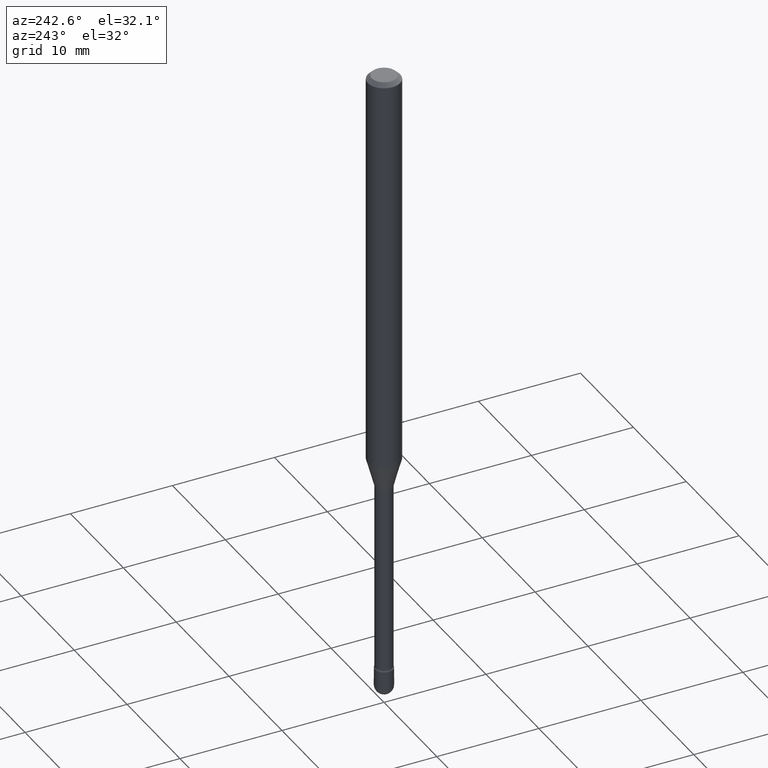
[diagram: clean part render]
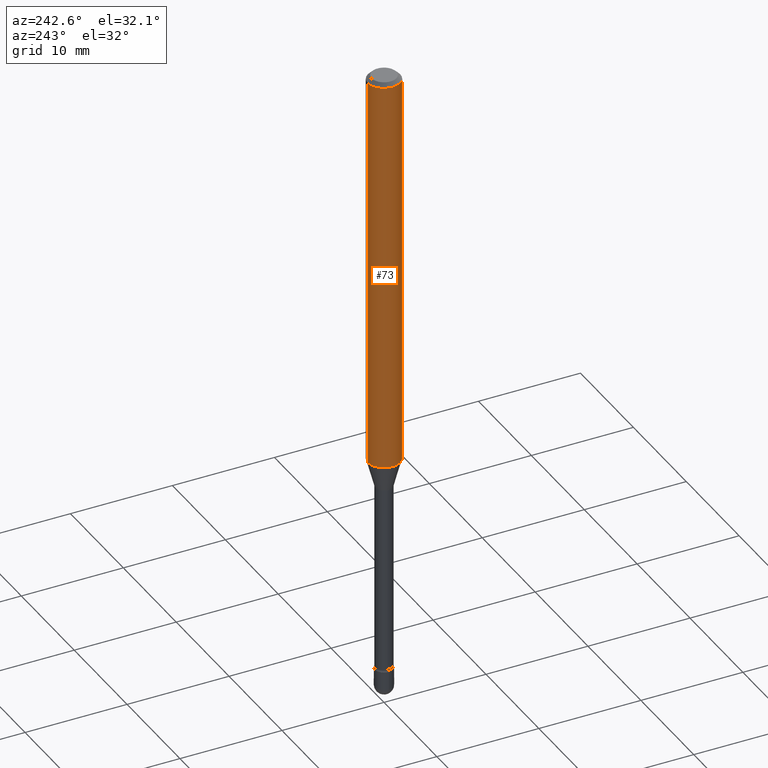
[diagram: same view with one face highlighted and labeled with its STEP entity id]
A machine part, auxiliary view. The second image highlights one B-rep face of the part: STEP entity #73.
In plain terms, the highlighted cylindrical surface (edge-blend (fillet) strip) has radius 1.5875 mm, axis along (-0, 0, 1).
Its self-contained STEP definition (entity closure, byte-faithful):
#15 = DIRECTION ( 'NONE',  ( -2.445517311797238408E-29, 3.491411876045847852E-15, 1.000000000000000000 ) ) ;
#25 = CARTESIAN_POINT ( 'NONE',  ( 4.440892098501006787E-16, 0.06249999999999995143, -0.01500000000000030129 ) ) ;
#30 = CARTESIAN_POINT ( 'NONE',  ( -4.364351673553912750E-16, -0.06250000000000005551, -0.01499999999999986587 ) ) ;
#38 = VECTOR ( 'NONE', #182, 39.37007874015748143 ) ;
#46 = DIRECTION ( 'NONE',  ( -6.982962677686265922E-15, -1.000000000000000000, 3.491411876045847458E-15 ) ) ;
#55 = ORIENTED_EDGE ( 'NONE', *, *, #244, .T. ) ;
#66 = CARTESIAN_POINT ( 'NONE',  ( 3.789405609774286933E-29, -5.410051969494155627E-15, -1.549531296095961519 ) ) ;
#73 = ADVANCED_FACE ( 'NONE', ( #323 ), #91, .T. ) ;
#76 = AXIS2_PLACEMENT_3D ( 'NONE', #185, #15, #46 ) ;
#78 = DIRECTION ( 'NONE',  ( -2.445517311797238408E-29, 3.491411876045847852E-15, 1.000000000000000000 ) ) ;
#91 = CYLINDRICAL_SURFACE ( 'NONE', #76, 0.06250000000000000000 ) ;
#107 = CIRCLE ( 'NONE', #297, 0.06250000000000000000 ) ;
#117 = ORIENTED_EDGE ( 'NONE', *, *, #495, .T. ) ;
#119 = DIRECTION ( 'NONE',  ( -2.445517311797238408E-29, 3.491411876045847852E-15, 1.000000000000000000 ) ) ;
#121 = EDGE_LOOP ( 'NONE', ( #352, #55, #117, #166 ) ) ;
#142 = VERTEX_POINT ( 'NONE', #30 ) ;
#164 = VECTOR ( 'NONE', #446, 39.37007874015748143 ) ;
#166 = ORIENTED_EDGE ( 'NONE', *, *, #395, .F. ) ;
#182 = DIRECTION ( 'NONE',  ( -2.445517311797238688E-29, 3.491411876045848246E-15, 1.000000000000000000 ) ) ;
#185 = CARTESIAN_POINT ( 'NONE',  ( -1.169113584055446105E-44, 1.669184350826100908E-30, 4.780733988912460139E-16 ) ) ;
#191 = CARTESIAN_POINT ( 'NONE',  ( -4.364351673553540013E-16, -0.06250000000000544009, -1.549531296095961297 ) ) ;
#204 = CIRCLE ( 'NONE', #383, 0.06250000000000000000 ) ;
#229 = VERTEX_POINT ( 'NONE', #25 ) ;
#244 = EDGE_CURVE ( 'NONE', #523, #554, #204, .T. ) ;
#268 = CARTESIAN_POINT ( 'NONE',  ( 3.668275967695877755E-31, -5.237117814068800744E-17, -0.01500000000000008271 ) ) ;
#297 = AXIS2_PLACEMENT_3D ( 'NONE', #268, #78, #429 ) ;
#298 = DIRECTION ( 'NONE',  ( -6.982962677686265922E-15, -1.000000000000000000, 4.370956789862821150E-15 ) ) ;
#323 = FACE_OUTER_BOUND ( 'NONE', #121, .T. ) ;
#326 = CARTESIAN_POINT ( 'NONE',  ( -4.364351673553916201E-16, -0.06250000000000000000, 6.962866411441115293E-16 ) ) ;
#352 = ORIENTED_EDGE ( 'NONE', *, *, #557, .F. ) ;
#383 = AXIS2_PLACEMENT_3D ( 'NONE', #66, #119, #298 ) ;
#395 = EDGE_CURVE ( 'NONE', #229, #142, #107, .T. ) ;
#429 = DIRECTION ( 'NONE',  ( -6.982962677686265922E-15, -1.000000000000000000, 3.483106191921935554E-15 ) ) ;
#446 = DIRECTION ( 'NONE',  ( -2.445517311797238688E-29, 3.491411876045848246E-15, 1.000000000000000000 ) ) ;
#487 = CARTESIAN_POINT ( 'NONE',  ( 4.440892098500625669E-16, 0.06250000000000000000, 2.598601566383805971E-16 ) ) ;
#492 = CARTESIAN_POINT ( 'NONE',  ( 4.440892098501002843E-16, 0.06249999999999455991, -1.549531296095961963 ) ) ;
#495 = EDGE_CURVE ( 'NONE', #554, #142, #558, .T. ) ;
#523 = VERTEX_POINT ( 'NONE', #492 ) ;
#538 = LINE ( 'NONE', #487, #164 ) ;
#554 = VERTEX_POINT ( 'NONE', #191 ) ;
#557 = EDGE_CURVE ( 'NONE', #523, #229, #538, .T. ) ;
#558 = LINE ( 'NONE', #326, #38 ) ;